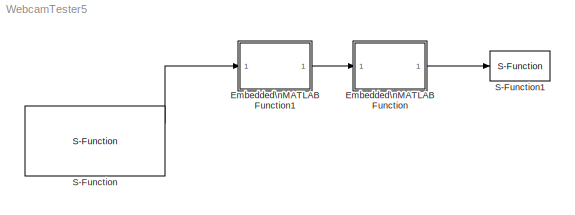
MODEL WebcamTester5
KIND model
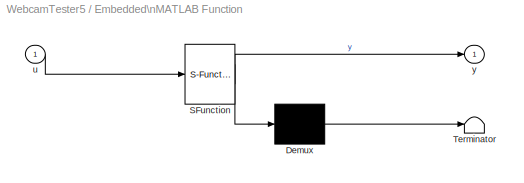
BLOCK [SubSystem] Embedded\nMATLAB Function
  ErrorFcn = Stateflow.Translate.translate
  FunctionWithSeparateData = off
  MaskDescription = Embedded MATLAB block
  MaskDisplay = bgColor = Simulink.Root.ColorString2Rgb(get_param(gcbh, 'BackgroundColor')); image(imread('private/eml_membrane_16.png','png','BackgroundColor',bgColor(1:3)),'center'); disp([10 10 'fcn']);
  MaskHideContents = off
  MaskIconFrame = on
  MaskIconOpaque = off
  MaskIconRotate = none
  MaskIconUnits = normalized
  MaskPortRotate = default
  MaskSelfModifiable = on
  MaskType = Stateflow
  MinAlgLoopOccurrences = off
  Opaque = off
  PermitHierarchicalResolution = ExplicitOnly
  Ports = [1, 1]
  PropExecContextOutsideSubsystem = off
  RTWSystemCode = Auto
  RequestExecContextInheritance = off
  SFBlockType = MATLAB Function
  SID = 1
  TreatAsAtomicUnit = on
BLOCK [Demux] Embedded\nMATLAB Function/ Demux 
  Outputs = 1
  Ports = [1, 1]
  SID = 1::7
BLOCK [S-Function] Embedded\nMATLAB Function/ SFunction 
  EnableBusSupport = on
  FunctionName = sf_sfun
  PortCounts = [1 2]
  Ports = [1, 2]
  SID = 1::6
  Tag = Stateflow S-Function WebcamTester5 2
BLOCK [Terminator] Embedded\nMATLAB Function/ Terminator 
  SID = 1::9
BLOCK [Inport] Embedded\nMATLAB Function/u
  IconDisplay = Port number
  SID = 1::1
BLOCK [Outport] Embedded\nMATLAB Function/y
  IconDisplay = Port number
  SID = 1::5
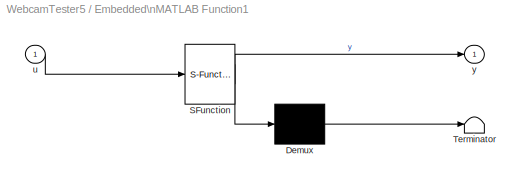
BLOCK [SubSystem] Embedded\nMATLAB Function1
  ErrorFcn = Stateflow.Translate.translate
  FunctionWithSeparateData = off
  MaskDescription = Embedded MATLAB block
  MaskDisplay = bgColor = Simulink.Root.ColorString2Rgb(get_param(gcbh, 'BackgroundColor')); image(imread('private/eml_membrane_16.png','png','BackgroundColor',bgColor(1:3)),'center'); disp([10 10 'fcn']);
  MaskHideContents = off
  MaskIconFrame = on
  MaskIconOpaque = off
  MaskIconRotate = none
  MaskIconUnits = normalized
  MaskPortRotate = default
  MaskSelfModifiable = on
  MaskType = Stateflow
  MinAlgLoopOccurrences = off
  Opaque = off
  PermitHierarchicalResolution = ExplicitOnly
  Ports = [1, 1]
  PropExecContextOutsideSubsystem = off
  RTWSystemCode = Auto
  RequestExecContextInheritance = off
  SFBlockType = MATLAB Function
  SID = 2
  TreatAsAtomicUnit = on
BLOCK [Demux] Embedded\nMATLAB Function1/ Demux 
  Outputs = 1
  Ports = [1, 1]
  SID = 2::7
BLOCK [S-Function] Embedded\nMATLAB Function1/ SFunction 
  EnableBusSupport = on
  FunctionName = sf_sfun
  PortCounts = [1 2]
  Ports = [1, 2]
  SID = 2::6
  Tag = Stateflow S-Function WebcamTester5 1
BLOCK [Terminator] Embedded\nMATLAB Function1/ Terminator 
  SID = 2::9
BLOCK [Inport] Embedded\nMATLAB Function1/u
  IconDisplay = Port number
  SID = 2::1
BLOCK [Outport] Embedded\nMATLAB Function1/y
  IconDisplay = Port number
  SID = 2::5
BLOCK [S-Function] S-Function
  EnableBusSupport = off
  FunctionName = WebcamTest
  Ports = [0, 3]
  SID = 3
BLOCK [S-Function] S-Function1
  EnableBusSupport = off
  FunctionName = printOut
  Ports = [1]
  SID = 4
LINE Embedded\nMATLAB Function/ Demux :1 -> Embedded\nMATLAB Function/ Terminator :1
LINE Embedded\nMATLAB Function/ SFunction :1 -> Embedded\nMATLAB Function/ Demux :1
LINE Embedded\nMATLAB Function/ SFunction :2 -> Embedded\nMATLAB Function/y:1
LINE Embedded\nMATLAB Function/u:1 -> Embedded\nMATLAB Function/ SFunction :1
LINE Embedded\nMATLAB Function1/ Demux :1 -> Embedded\nMATLAB Function1/ Terminator :1
LINE Embedded\nMATLAB Function1/ SFunction :1 -> Embedded\nMATLAB Function1/ Demux :1
LINE Embedded\nMATLAB Function1/ SFunction :2 -> Embedded\nMATLAB Function1/y:1
LINE Embedded\nMATLAB Function1/u:1 -> Embedded\nMATLAB Function1/ SFunction :1
LINE Embedded\nMATLAB Function1:1 -> Embedded\nMATLAB Function:1
LINE Embedded\nMATLAB Function:1 -> S-Function1:1
LINE S-Function:1 -> Embedded\nMATLAB Function1:1
CHART Embedded\nMATLAB Function1 states=1 transitions=1
  STATE_LABEL 'eML_blk_kernel()'
CHART Embedded\nMATLAB Function states=1 transitions=1
  STATE_LABEL 'eML_blk_kernel()'
